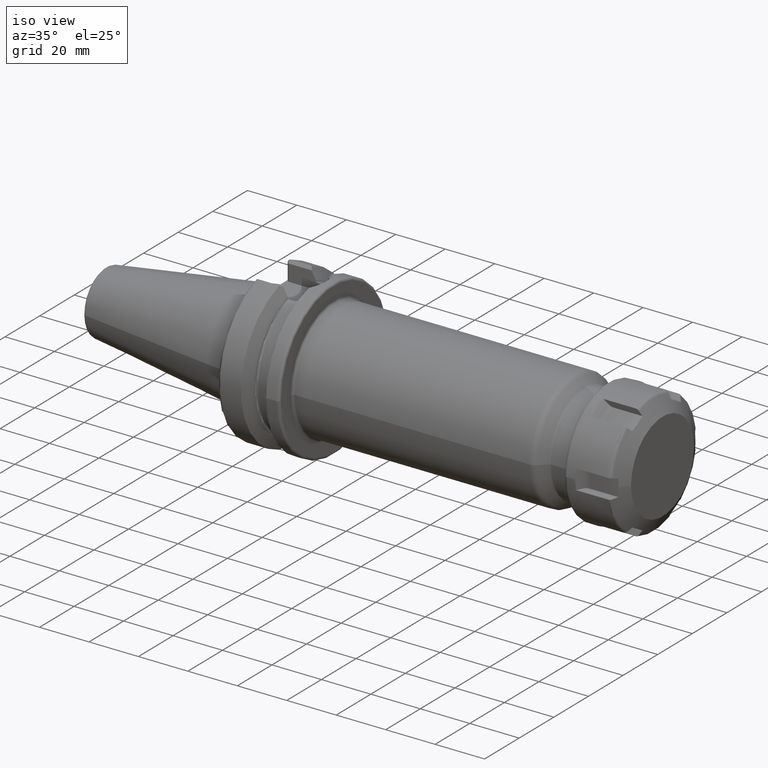
[diagram: clean part render]
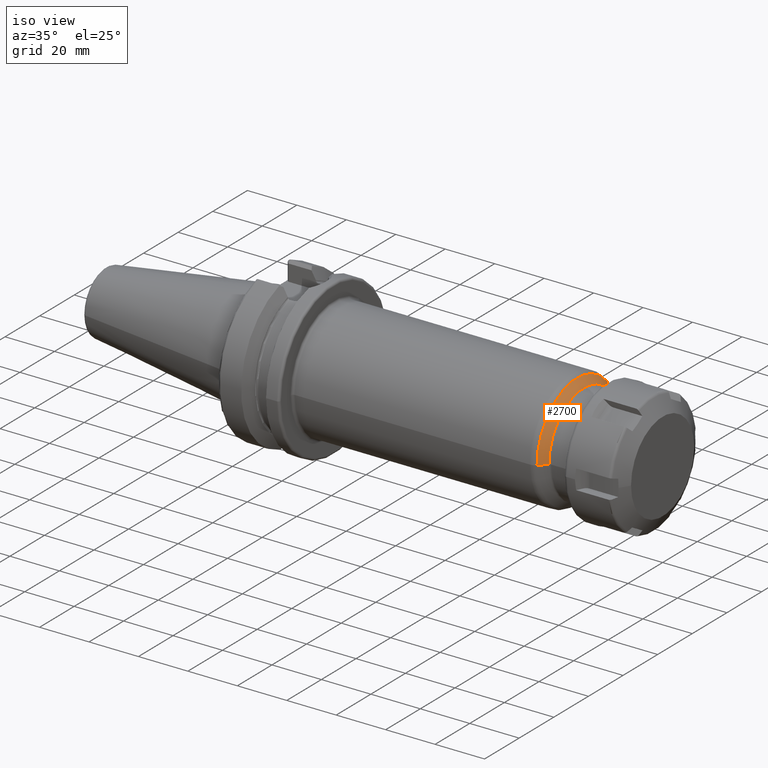
[diagram: same view with one face highlighted and labeled with its STEP entity id]
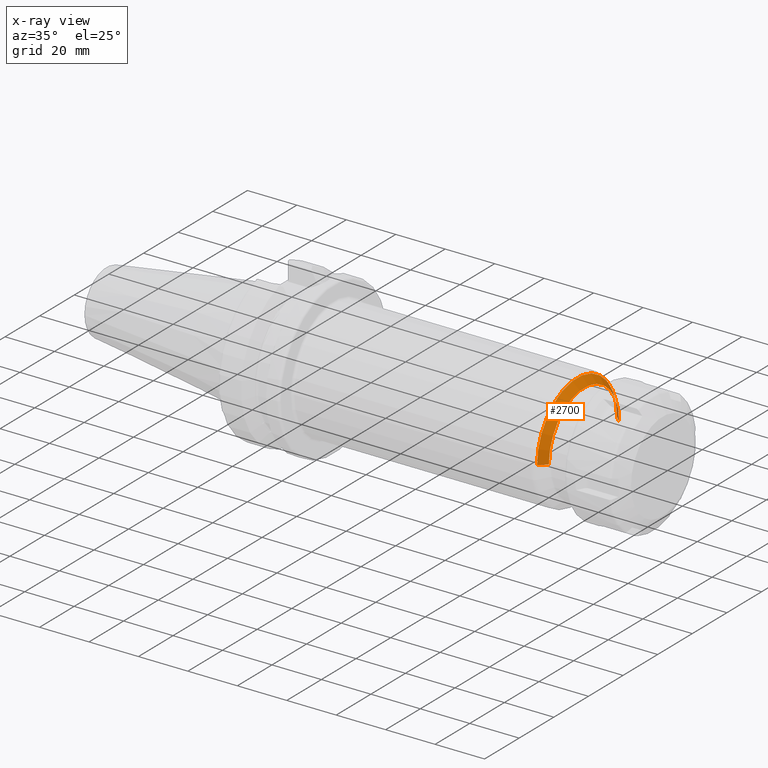
[diagram: x-ray of the same camera — body ghosted, the highlighted face saturated]
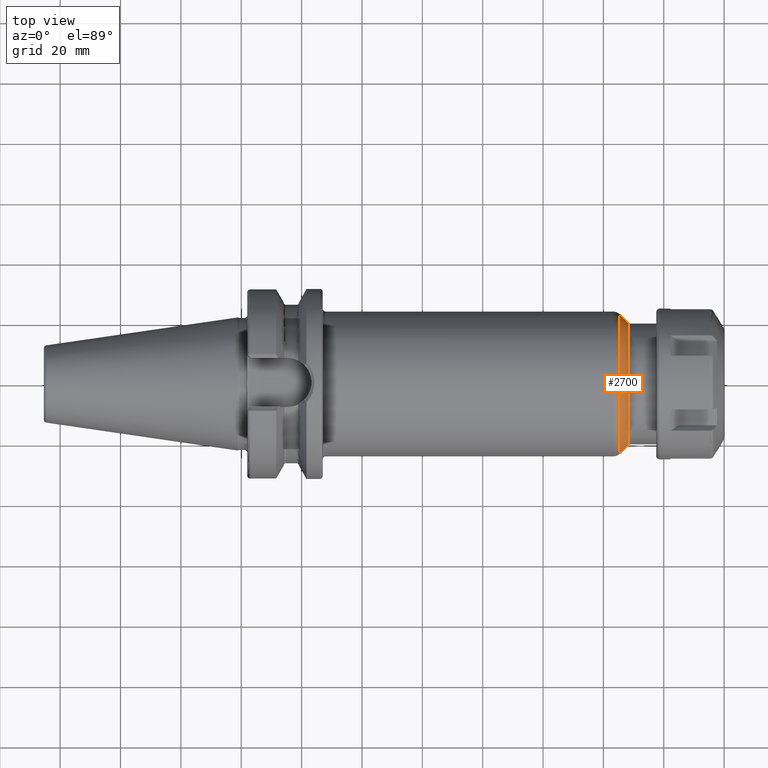
[diagram: same view with one face highlighted and labeled with its STEP entity id]
A machine part, iso view. The second image highlights one B-rep face of the part: STEP entity #2700.
The next image is the same camera in x-ray: the body ghosted, the highlighted face saturated — about 3% of this face is hidden behind the body in this view.
A second angle (top view) of the same face is appended — the face is thin or edge-on in the first view.
In plain terms, the highlighted conical surface has half-angle 45 deg.
Its self-contained STEP definition (entity closure, byte-faithful):
#899=DIRECTION('',(-7.071067811865E-1,-7.071067811865E-1,-2.730807818714E-12));
#900=VECTOR('',#899,3.999999999999E0);
#901=CARTESIAN_POINT('',(1.282071067812E2,-2.029289321881E1,
1.348809101599E-13));
#902=LINE('',#901,#900);
#908=DIRECTION('',(-7.071067811865E-1,7.071067811865E-1,2.730414782264E-12));
#909=VECTOR('',#908,3.999999999999E0);
#910=CARTESIAN_POINT('',(1.282071067812E2,2.029289321881E1,
-1.354883230402E-13));
#911=LINE('',#910,#909);
#912=CARTESIAN_POINT('',(1.253786796564E2,0.E0,0.E0));
#913=DIRECTION('',(-1.E0,0.E0,0.E0));
#914=DIRECTION('',(0.E0,-1.E0,0.E0));
#915=AXIS2_PLACEMENT_3D('',#912,#913,#914);
#917=CARTESIAN_POINT('',(1.282071067812E2,0.E0,0.E0));
#918=DIRECTION('',(1.E0,0.E0,0.E0));
#919=DIRECTION('',(0.E0,1.E0,0.E0));
#920=AXIS2_PLACEMENT_3D('',#917,#918,#919);
#1473=CARTESIAN_POINT('',(1.282071067812E2,-2.029289321881E1,0.E0));
#1474=CARTESIAN_POINT('',(1.282071067812E2,2.029289321881E1,0.E0));
#1475=VERTEX_POINT('',#1473);
#1476=VERTEX_POINT('',#1474);
#1485=CARTESIAN_POINT('',(1.253786796564E2,2.312132034356E1,0.E0));
#1486=CARTESIAN_POINT('',(1.253786796564E2,-2.312132034356E1,0.E0));
#1487=VERTEX_POINT('',#1485);
#1488=VERTEX_POINT('',#1486);
#2688=CARTESIAN_POINT('',(1.267928932188E2,0.E0,0.E0));
#2689=DIRECTION('',(-1.E0,0.E0,0.E0));
#2690=DIRECTION('',(0.E0,1.E0,0.E0));
#2691=AXIS2_PLACEMENT_3D('',#2688,#2689,#2690);
#2692=CONICAL_SURFACE('',#2691,2.170710678119E1,4.5E1);
#2693=ORIENTED_EDGE('',*,*,#2640,.T.);
#2694=ORIENTED_EDGE('',*,*,#2683,.F.);
#2696=ORIENTED_EDGE('',*,*,#2695,.T.);
#2697=ORIENTED_EDGE('',*,*,#2679,.T.);
#2698=EDGE_LOOP('',(#2693,#2694,#2696,#2697));
#2699=FACE_OUTER_BOUND('',#2698,.F.);
#2700=ADVANCED_FACE('',(#2699),#2692,.T.);
#916=CIRCLE('',#915,2.312132034356E1);
#921=CIRCLE('',#920,2.029289321881E1);
#2640=EDGE_CURVE('',#1488,#1487,#916,.T.);
#2679=EDGE_CURVE('',#1475,#1488,#902,.T.);
#2683=EDGE_CURVE('',#1476,#1487,#911,.T.);
#2695=EDGE_CURVE('',#1476,#1475,#921,.T.);